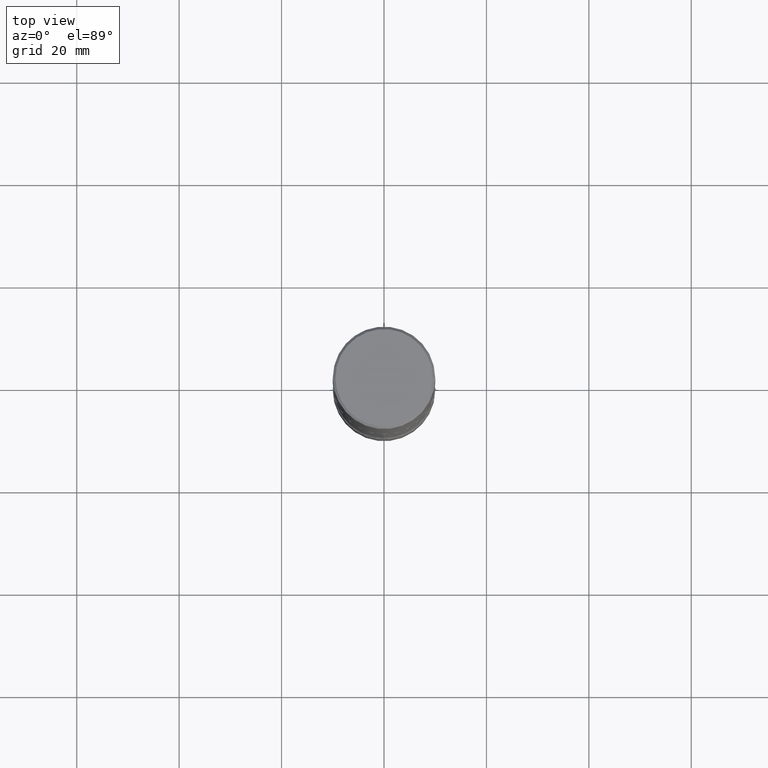
[diagram: clean part render]
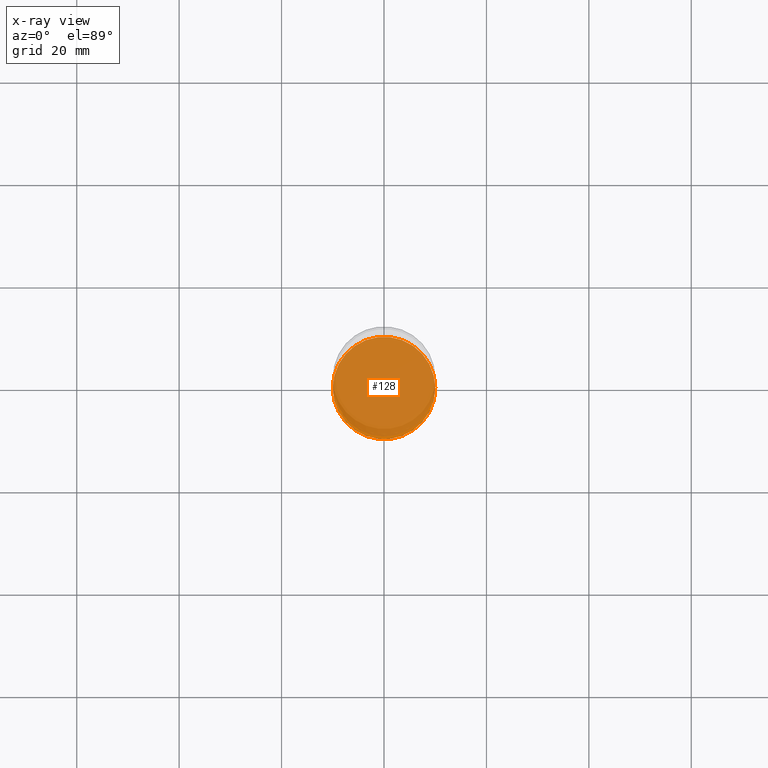
[diagram: x-ray — body ghosted, one internal face saturated and labeled with its STEP entity id]
A machine part, top view, then the same camera in x-ray: the body is ghosted and one INTERNAL B-rep face — a face not visible from any outside direction — is saturated and labeled: STEP entity #128.
In plain terms, the highlighted planar face has unit normal (0, -0, -1).
Its self-contained STEP definition (entity closure, byte-faithful):
#40 = CIRCLE ( 'NONE', #445, 0.3937000000000003830 ) ;
#47 = EDGE_CURVE ( 'NONE', #389, #89, #425, .T. ) ;
#71 = ORIENTED_EDGE ( 'NONE', *, *, #376, .T. ) ;
#89 = VERTEX_POINT ( 'NONE', #454 ) ;
#117 = PLANE ( 'NONE',  #280 ) ;
#128 = ADVANCED_FACE ( 'NONE', ( #149 ), #117, .F. ) ;
#149 = FACE_OUTER_BOUND ( 'NONE', #288, .T. ) ;
#189 = DIRECTION ( 'NONE',  ( 1.000000000000000000, -6.982962677686261977E-15, 0.000000000000000000 ) ) ;
#241 = CARTESIAN_POINT ( 'NONE',  ( 1.116821149096690103E-28, -1.594524612636276117E-14, -4.566900000000000404 ) ) ;
#276 = DIRECTION ( 'NONE',  ( 1.000000000000000000, -6.982962677686261977E-15, 0.000000000000000000 ) ) ;
#280 = AXIS2_PLACEMENT_3D ( 'NONE', #318, #284, #287 ) ;
#281 = DIRECTION ( 'NONE',  ( -2.445468806185136597E-29, 3.491481338843145583E-15, 1.000000000000000000 ) ) ;
#284 = DIRECTION ( 'NONE',  ( 2.438088387897960049E-29, -3.491481338843145188E-15, -1.000000000000000000 ) ) ;
#287 = DIRECTION ( 'NONE',  ( -1.000000000000000000, 6.982962677686265922E-15, -4.876176775795935793E-29 ) ) ;
#288 = EDGE_LOOP ( 'NONE', ( #71, #514 ) ) ;
#318 = CARTESIAN_POINT ( 'NONE',  ( 1.116821149096690103E-28, -1.594524612636276117E-14, -4.566900000000000404 ) ) ;
#376 = EDGE_CURVE ( 'NONE', #89, #389, #40, .T. ) ;
#389 = VERTEX_POINT ( 'NONE', #531 ) ;
#390 = AXIS2_PLACEMENT_3D ( 'NONE', #241, #281, #276 ) ;
#400 = CARTESIAN_POINT ( 'NONE',  ( 1.116821149096690103E-28, -1.594524612636276117E-14, -4.566900000000000404 ) ) ;
#407 = DIRECTION ( 'NONE',  ( -2.445468806185136597E-29, 3.491481338843145583E-15, 1.000000000000000000 ) ) ;
#425 = CIRCLE ( 'NONE', #390, 0.3937000000000003830 ) ;
#445 = AXIS2_PLACEMENT_3D ( 'NONE', #400, #407, #189 ) ;
#454 = CARTESIAN_POINT ( 'NONE',  ( 0.3937000000000003830, -1.869443853256784755E-14, -4.566900000000000404 ) ) ;
#514 = ORIENTED_EDGE ( 'NONE', *, *, #47, .T. ) ;
#531 = CARTESIAN_POINT ( 'NONE',  ( -0.3937000000000003830, -1.459121776115300155E-14, -4.566900000000000404 ) ) ;